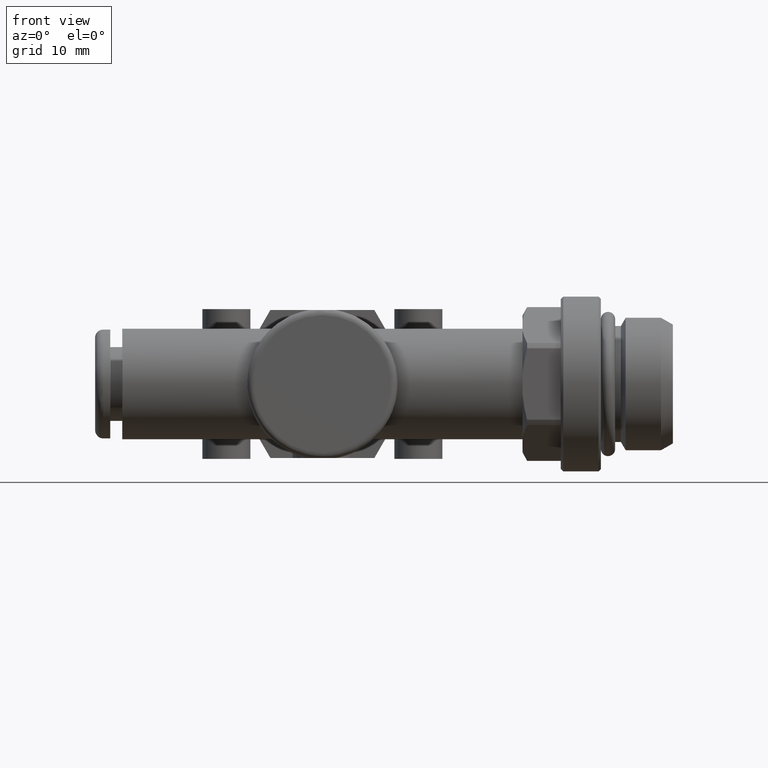
[diagram: clean part render]
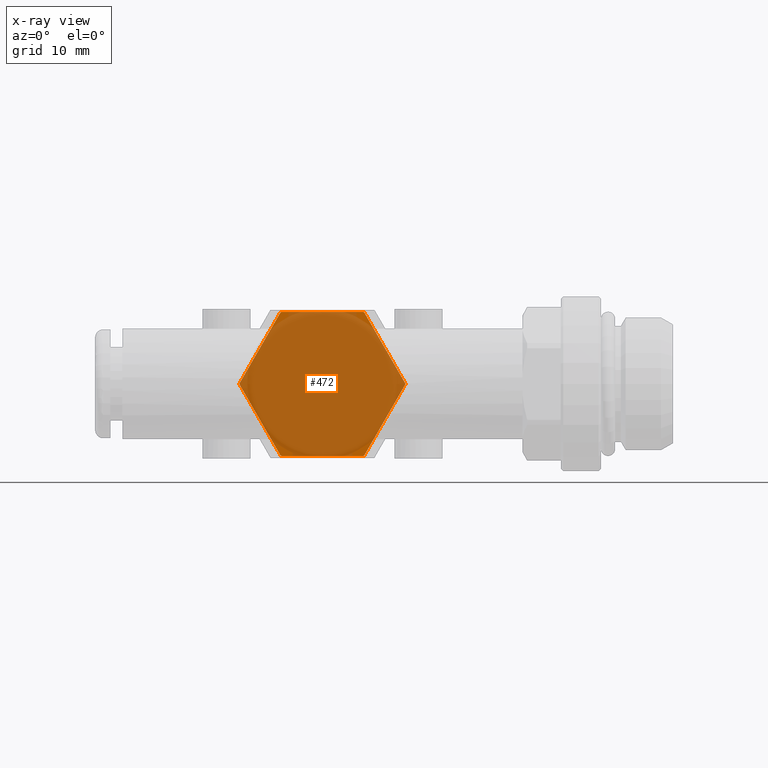
[diagram: x-ray — body ghosted, one internal face saturated and labeled with its STEP entity id]
A machine part, front view, then the same camera in x-ray: the body is ghosted and one INTERNAL B-rep face — a face not visible from any outside direction — is saturated and labeled: STEP entity #472.
In plain terms, the highlighted planar face has unit normal (0, 1, 0).
Its self-contained STEP definition (entity closure, byte-faithful):
#472 = ADVANCED_FACE( '', ( #1020 ), #1021, .F. );
#1020 = FACE_OUTER_BOUND( '', #1705, .T. );
#1021 = PLANE( '', #1706 );
#1705 = EDGE_LOOP( '', ( #2705, #2706, #2707, #2708, #2709, #2710, #2711, #2712, #2713, #2714, #2715, #2716 ) );
#1706 = AXIS2_PLACEMENT_3D( '', #2717, #2718, #2719 );
#2705 = ORIENTED_EDGE( '', *, *, #3955, .F. );
#2706 = ORIENTED_EDGE( '', *, *, #3843, .F. );
#2707 = ORIENTED_EDGE( '', *, *, #3956, .F. );
#2708 = ORIENTED_EDGE( '', *, *, #3828, .F. );
#2709 = ORIENTED_EDGE( '', *, *, #3682, .F. );
#2710 = ORIENTED_EDGE( '', *, *, #3707, .F. );
#2711 = ORIENTED_EDGE( '', *, *, #3957, .F. );
#2712 = ORIENTED_EDGE( '', *, *, #3759, .F. );
#2713 = ORIENTED_EDGE( '', *, *, #3958, .F. );
#2714 = ORIENTED_EDGE( '', *, *, #3959, .F. );
#2715 = ORIENTED_EDGE( '', *, *, #3960, .F. );
#2716 = ORIENTED_EDGE( '', *, *, #3961, .F. );
#2717 = CARTESIAN_POINT( '', ( 0.000000000000000, 0.000000000000000, 0.000000000000000 ) );
#2718 = DIRECTION( '', ( 1.00000000000000, 0.000000000000000, -0.000000000000000 ) );
#2719 = DIRECTION( '', ( -0.000000000000000, 0.000000000000000, -1.00000000000000 ) );
#3682 = EDGE_CURVE( '', #4289, #4290, #4291, .T. );
#3707 = EDGE_CURVE( '', #4333, #4289, #4334, .T. );
#3759 = EDGE_CURVE( '', #4425, #4426, #4427, .T. );
#3828 = EDGE_CURVE( '', #4290, #4538, #4539, .T. );
#3843 = EDGE_CURVE( '', #4562, #4563, #4564, .T. );
#3955 = EDGE_CURVE( '', #4563, #4728, #4729, .T. );
#3956 = EDGE_CURVE( '', #4538, #4562, #4730, .T. );
#3957 = EDGE_CURVE( '', #4426, #4333, #4731, .T. );
#3958 = EDGE_CURVE( '', #4732, #4425, #4733, .T. );
#3959 = EDGE_CURVE( '', #4734, #4732, #4735, .T. );
#3960 = EDGE_CURVE( '', #4736, #4734, #4737, .T. );
#3961 = EDGE_CURVE( '', #4728, #4736, #4738, .T. );
#4289 = VERTEX_POINT( '', #5174 );
#4290 = VERTEX_POINT( '', #5175 );
#4291 = CIRCLE( '', #5176, 10.3500000000000 );
#4333 = VERTEX_POINT( '', #5358 );
#4334 = LINE( '', #5359, #5360 );
#4425 = VERTEX_POINT( '', #5547 );
#4426 = VERTEX_POINT( '', #5548 );
#4427 = LINE( '', #5549, #5550 );
#4538 = VERTEX_POINT( '', #5707 );
#4539 = LINE( '', #5708, #5709 );
#4562 = VERTEX_POINT( '', #5740 );
#4563 = VERTEX_POINT( '', #5741 );
#4564 = LINE( '', #5742, #5743 );
#4728 = VERTEX_POINT( '', #5997 );
#4729 = CIRCLE( '', #5998, 10.3500000000000 );
#4730 = CIRCLE( '', #5999, 10.3500000000000 );
#4731 = CIRCLE( '', #6000, 10.3500000000000 );
#4732 = VERTEX_POINT( '', #6001 );
#4733 = CIRCLE( '', #6002, 10.3500000000000 );
#4734 = VERTEX_POINT( '', #6003 );
#4735 = LINE( '', #6004, #6005 );
#4736 = VERTEX_POINT( '', #6006 );
#4737 = CIRCLE( '', #6007, 10.3500000000000 );
#4738 = LINE( '', #6008, #6009 );
#5174 = CARTESIAN_POINT( '', ( 0.000000000000000, -5.23871987844982, -8.92627100390385 ) );
#5175 = CARTESIAN_POINT( '', ( 0.000000000000000, -5.11101751122025, -9.00000000000000 ) );
#5176 = AXIS2_PLACEMENT_3D( '', #6882, #6883, #6884 );
#5358 = CARTESIAN_POINT( '', ( 0.000000000000000, -10.3497373896701, -0.0737289960961477 ) );
#5359 = CARTESIAN_POINT( '', ( 0.000000000000000, -10.3923048454133, 0.000000000000000 ) );
#5360 = VECTOR( '', #6913, 1000.00000000000 );
#5547 = CARTESIAN_POINT( '', ( 0.000000000000000, -5.23871987844982, 8.92627100390385 ) );
#5548 = CARTESIAN_POINT( '', ( 0.000000000000000, -10.3497373896701, 0.0737289960961477 ) );
#5549 = CARTESIAN_POINT( '', ( 0.000000000000000, -5.19615242270663, 9.00000000000000 ) );
#5550 = VECTOR( '', #6973, 1000.00000000000 );
#5707 = CARTESIAN_POINT( '', ( 0.000000000000000, 5.11101751122025, -9.00000000000000 ) );
#5708 = CARTESIAN_POINT( '', ( 0.000000000000000, -5.19615242270663, -9.00000000000000 ) );
#5709 = VECTOR( '', #7056, 1000.00000000000 );
#5740 = CARTESIAN_POINT( '', ( 0.000000000000000, 5.23871987844982, -8.92627100390385 ) );
#5741 = CARTESIAN_POINT( '', ( 0.000000000000000, 10.3497373896701, -0.0737289960961477 ) );
#5742 = CARTESIAN_POINT( '', ( 0.000000000000000, 5.19615242270663, -9.00000000000000 ) );
#5743 = VECTOR( '', #7071, 1000.00000000000 );
#5997 = CARTESIAN_POINT( '', ( 0.000000000000000, 10.3497373896701, 0.0737289960961477 ) );
#5998 = AXIS2_PLACEMENT_3D( '', #7208, #7209, #7210 );
#5999 = AXIS2_PLACEMENT_3D( '', #7211, #7212, #7213 );
#6000 = AXIS2_PLACEMENT_3D( '', #7214, #7215, #7216 );
#6001 = CARTESIAN_POINT( '', ( 0.000000000000000, -5.11101751122025, 9.00000000000000 ) );
#6002 = AXIS2_PLACEMENT_3D( '', #7217, #7218, #7219 );
#6003 = CARTESIAN_POINT( '', ( 0.000000000000000, 5.11101751122025, 9.00000000000000 ) );
#6004 = CARTESIAN_POINT( '', ( 0.000000000000000, 5.19615242270663, 9.00000000000000 ) );
#6005 = VECTOR( '', #7220, 1000.00000000000 );
#6006 = CARTESIAN_POINT( '', ( 0.000000000000000, 5.23871987844982, 8.92627100390385 ) );
#6007 = AXIS2_PLACEMENT_3D( '', #7221, #7222, #7223 );
#6008 = CARTESIAN_POINT( '', ( 0.000000000000000, 10.3923048454133, 0.000000000000000 ) );
#6009 = VECTOR( '', #7224, 1000.00000000000 );
#6882 = CARTESIAN_POINT( '', ( 0.000000000000000, 0.000000000000000, 0.000000000000000 ) );
#6883 = DIRECTION( '', ( 1.00000000000000, 0.000000000000000, -0.000000000000000 ) );
#6884 = DIRECTION( '', ( -0.000000000000000, 0.000000000000000, -1.00000000000000 ) );
#6913 = DIRECTION( '', ( 0.000000000000000, 0.500000000000000, -0.866025403784439 ) );
#6973 = DIRECTION( '', ( 0.000000000000000, -0.500000000000000, -0.866025403784439 ) );
#7056 = DIRECTION( '', ( 0.000000000000000, 1.00000000000000, 0.000000000000000 ) );
#7071 = DIRECTION( '', ( 0.000000000000000, 0.500000000000000, 0.866025403784439 ) );
#7208 = CARTESIAN_POINT( '', ( 0.000000000000000, 0.000000000000000, 0.000000000000000 ) );
#7209 = DIRECTION( '', ( 1.00000000000000, 0.000000000000000, -0.000000000000000 ) );
#7210 = DIRECTION( '', ( -0.000000000000000, 0.000000000000000, -1.00000000000000 ) );
#7211 = CARTESIAN_POINT( '', ( 0.000000000000000, 0.000000000000000, 0.000000000000000 ) );
#7212 = DIRECTION( '', ( 1.00000000000000, 0.000000000000000, -0.000000000000000 ) );
#7213 = DIRECTION( '', ( -0.000000000000000, 0.000000000000000, -1.00000000000000 ) );
#7214 = CARTESIAN_POINT( '', ( 0.000000000000000, 0.000000000000000, 0.000000000000000 ) );
#7215 = DIRECTION( '', ( 1.00000000000000, 0.000000000000000, -0.000000000000000 ) );
#7216 = DIRECTION( '', ( -0.000000000000000, 0.000000000000000, -1.00000000000000 ) );
#7217 = CARTESIAN_POINT( '', ( 0.000000000000000, 0.000000000000000, 0.000000000000000 ) );
#7218 = DIRECTION( '', ( 1.00000000000000, 0.000000000000000, -0.000000000000000 ) );
#7219 = DIRECTION( '', ( -0.000000000000000, 0.000000000000000, -1.00000000000000 ) );
#7220 = DIRECTION( '', ( 0.000000000000000, -1.00000000000000, 0.000000000000000 ) );
#7221 = CARTESIAN_POINT( '', ( 0.000000000000000, 0.000000000000000, 0.000000000000000 ) );
#7222 = DIRECTION( '', ( 1.00000000000000, 0.000000000000000, -0.000000000000000 ) );
#7223 = DIRECTION( '', ( -0.000000000000000, 0.000000000000000, -1.00000000000000 ) );
#7224 = DIRECTION( '', ( 0.000000000000000, -0.500000000000000, 0.866025403784439 ) );